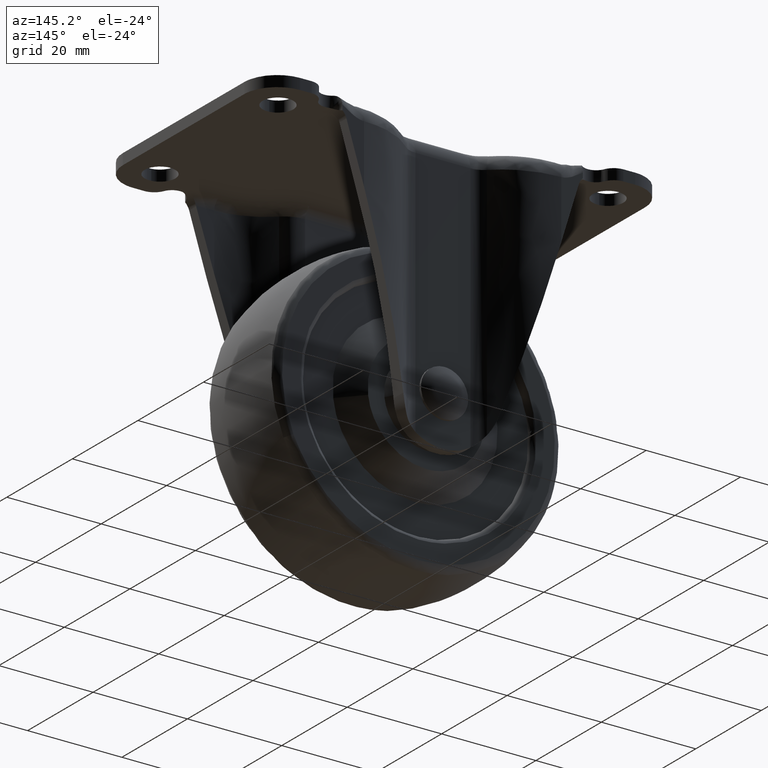
[diagram: clean part render]
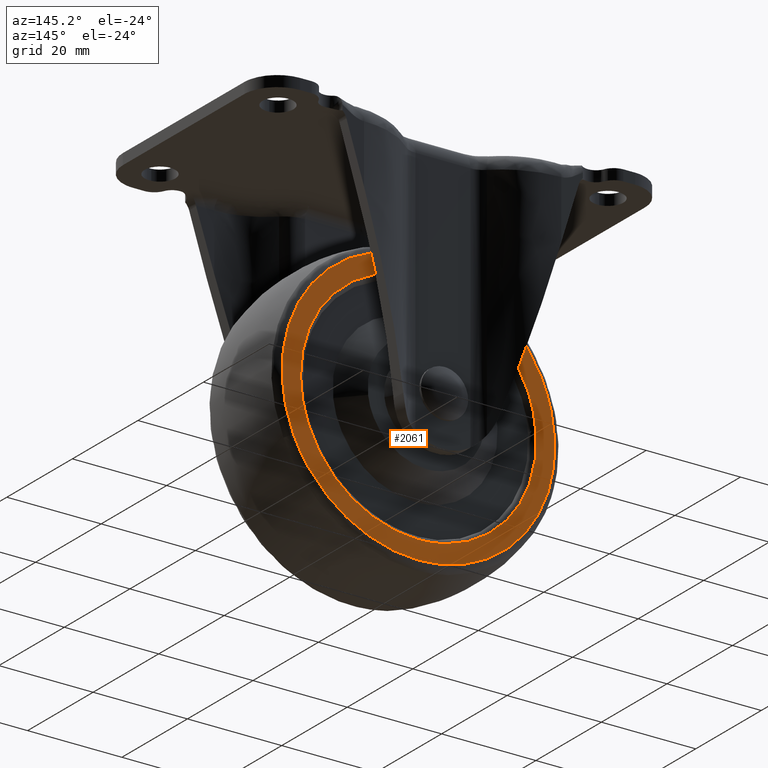
[diagram: same view with one face highlighted and labeled with its STEP entity id]
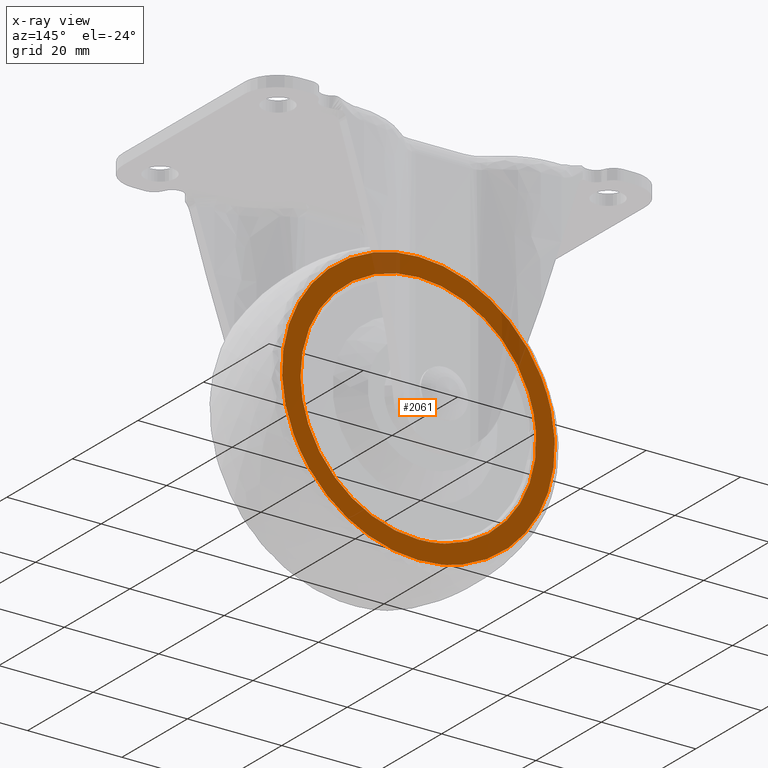
[diagram: x-ray of the same camera — body ghosted, the highlighted face saturated]
A machine part, auxiliary view. The second image highlights one B-rep face of the part: STEP entity #2061.
The next image is the same camera in x-ray: the body ghosted, the highlighted face saturated — about 7% of this face is hidden behind the body in this view.
In plain terms, the highlighted face is a freeform B-spline surface patch.
Its self-contained STEP definition (entity closure, byte-faithful):
#1453=CARTESIAN_POINT('',(26.486667035341458,10.500000000000000,-60.144346861437498));
#1454=VERTEX_POINT('',#1453);
#1468=CARTESIAN_POINT('',(0.0,10.500000000000000,-19.566726000000099));
#1469=VERTEX_POINT('',#1468);
#1470=CARTESIAN_POINT('',(26.486667035341465,10.500000000000000,-60.144346861437512));
#1471=CARTESIAN_POINT('',(28.933273999999898,10.500000000000000,-54.579203116927651));
#1472=CARTESIAN_POINT('',(28.933273999999901,10.500000000000000,-48.500000000000000));
#1473=CARTESIAN_POINT('',(28.933273999999905,10.500000000000002,-19.566726000000095));
#1474=CARTESIAN_POINT('',(0.0,10.500000000000000,-19.566726000000099));
#1482=(BOUNDED_CURVE()B_SPLINE_CURVE(2,(#1470,#1471,#1472,#1473,#1474),.UNSPECIFIED.,.F.,.U.)B_SPLINE_CURVE_WITH_KNOTS((3,2,3),(0.181662010434907,0.250000000000000,0.500000000000000),.UNSPECIFIED.)CURVE()GEOMETRIC_REPRESENTATION_ITEM()RATIONAL_B_SPLINE_CURVE((0.883644850243327,0.919937065076159,1.0,0.707106781186548,1.0))REPRESENTATION_ITEM(''));
#1483=EDGE_CURVE('',#1454,#1469,#1482,.T.);
#1485=CARTESIAN_POINT('',(-28.112487159007738,10.500000000000000,-41.657309717454510));
#1486=VERTEX_POINT('',#1485);
#1487=CARTESIAN_POINT('',(0.0,10.500000000000000,-19.566726000000099));
#1488=CARTESIAN_POINT('',(-22.735551927677601,10.500000000000000,-19.566726000000102));
#1489=CARTESIAN_POINT('',(-28.112487159007738,10.500000000000000,-41.657309717454517));
#1497=(BOUNDED_CURVE()B_SPLINE_CURVE(2,(#1487,#1488,#1489),.UNSPECIFIED.,.F.,.U.)B_SPLINE_CURVE_WITH_KNOTS((3,3),(0.500000000000000,0.709598322306346),.UNSPECIFIED.)CURVE()GEOMETRIC_REPRESENTATION_ITEM()RATIONAL_B_SPLINE_CURVE((1.0,0.754440290887180,0.920631806223011))REPRESENTATION_ITEM(''));
#1498=EDGE_CURVE('',#1469,#1486,#1497,.T.);
#1600=CARTESIAN_POINT('',(0.0,10.500000000000000,-77.433273999999898));
#1601=VERTEX_POINT('',#1600);
#1602=CARTESIAN_POINT('',(-28.112487159007731,10.500000000000000,-41.657309717454510));
#1603=CARTESIAN_POINT('',(-28.933273999999898,10.500000000000000,-45.029427799552693));
#1604=CARTESIAN_POINT('',(-28.933273999999901,10.500000000000000,-48.500000000000000));
#1605=CARTESIAN_POINT('',(-28.933273999999905,10.500000000000002,-77.433273999999898));
#1606=CARTESIAN_POINT('',(0.0,10.500000000000000,-77.433273999999898));
#1614=(BOUNDED_CURVE()B_SPLINE_CURVE(2,(#1602,#1603,#1604,#1605,#1606),.UNSPECIFIED.,.F.,.U.)B_SPLINE_CURVE_WITH_KNOTS((3,2,3),(0.709598322306346,0.750000000000000,1.0),.UNSPECIFIED.)CURVE()GEOMETRIC_REPRESENTATION_ITEM()RATIONAL_B_SPLINE_CURVE((0.920631806223011,0.952666490299368,1.0,0.707106781186548,1.0))REPRESENTATION_ITEM(''));
#1615=EDGE_CURVE('',#1486,#1601,#1614,.T.);
#1617=CARTESIAN_POINT('',(0.0,10.500000000000000,-77.433273999999898));
#1618=CARTESIAN_POINT('',(18.885927227229995,10.499999999999998,-77.433273999999898));
#1619=CARTESIAN_POINT('',(26.486667035341465,10.500000000000000,-60.144346861437512));
#1627=(BOUNDED_CURVE()B_SPLINE_CURVE(2,(#1617,#1618,#1619),.UNSPECIFIED.,.F.,.U.)B_SPLINE_CURVE_WITH_KNOTS((3,3),(0.0,0.181662010434907),.UNSPECIFIED.)CURVE()GEOMETRIC_REPRESENTATION_ITEM()RATIONAL_B_SPLINE_CURVE((1.0,0.787169716110389,0.883644850243327))REPRESENTATION_ITEM(''));
#1628=EDGE_CURVE('',#1601,#1454,#1627,.T.);
#1663=CARTESIAN_POINT('',(-24.939141844642759,10.500000000000000,-46.756668710618250));
#1664=VERTEX_POINT('',#1663);
#1665=CARTESIAN_POINT('',(0.0,10.500000000000000,-73.500000000000014));
#1666=VERTEX_POINT('',#1665);
#1667=CARTESIAN_POINT('',(-24.939141844642766,10.500000000000000,-46.756668710618250));
#1668=CARTESIAN_POINT('',(-25.000000000000004,10.500000000000002,-47.627272103041001));
#1669=CARTESIAN_POINT('',(-25.0,10.500000000000000,-48.500000000000000));
#1670=CARTESIAN_POINT('',(-25.000000000000004,10.500000000000000,-73.500000000000014));
#1671=CARTESIAN_POINT('',(0.0,10.500000000000000,-73.500000000000014));
#1679=(BOUNDED_CURVE()B_SPLINE_CURVE(2,(#1667,#1668,#1669,#1670,#1671),.UNSPECIFIED.,.F.,.U.)B_SPLINE_CURVE_WITH_KNOTS((3,2,3),(0.737833686533881,0.750000000000000,1.0),.UNSPECIFIED.)CURVE()GEOMETRIC_REPRESENTATION_ITEM()RATIONAL_B_SPLINE_CURVE((0.972879876384415,0.985746277151260,1.0,0.707106781186547,1.0))REPRESENTATION_ITEM(''));
#1680=EDGE_CURVE('',#1664,#1666,#1679,.T.);
#1729=CARTESIAN_POINT('',(24.998026104377040,10.500000000000000,-48.814150997144083));
#1730=VERTEX_POINT('',#1729);
#1744=CARTESIAN_POINT('',(0.0,10.500000000000000,-73.500000000000014));
#1745=CARTESIAN_POINT('',(24.687798247545992,10.500000000000000,-73.500000000000000));
#1746=CARTESIAN_POINT('',(24.998026104377047,10.500000000000002,-48.814150997144083));
#1754=(BOUNDED_CURVE()B_SPLINE_CURVE(2,(#1744,#1745,#1746),.UNSPECIFIED.,.F.,.U.)B_SPLINE_CURVE_WITH_KNOTS((3,3),(0.0,0.247784295920753),.UNSPECIFIED.)CURVE()GEOMETRIC_REPRESENTATION_ITEM()RATIONAL_B_SPLINE_CURVE((1.0,0.709702639985382,0.994854295641769))REPRESENTATION_ITEM(''));
#1755=EDGE_CURVE('',#1666,#1730,#1754,.T.);
#1783=CARTESIAN_POINT('',(0.0,10.500000000000000,-23.500000000000000));
#1784=VERTEX_POINT('',#1783);
#1785=CARTESIAN_POINT('',(0.0,10.500000000000000,-23.500000000000000));
#1786=CARTESIAN_POINT('',(-23.313421181495205,10.500000000000000,-23.500000000000004));
#1787=CARTESIAN_POINT('',(-24.939141844642755,10.499999999999998,-46.756668710618250));
#1795=(BOUNDED_CURVE()B_SPLINE_CURVE(2,(#1785,#1786,#1787),.UNSPECIFIED.,.F.,.U.)B_SPLINE_CURVE_WITH_KNOTS((3,3),(0.500000000000000,0.737833686533881),.UNSPECIFIED.)CURVE()GEOMETRIC_REPRESENTATION_ITEM()RATIONAL_B_SPLINE_CURVE((1.0,0.721360504035287,0.972879876384416))REPRESENTATION_ITEM(''));
#1796=EDGE_CURVE('',#1784,#1664,#1795,.T.);
#1798=CARTESIAN_POINT('',(24.998026104377043,10.499999999999998,-48.814150997144083));
#1799=CARTESIAN_POINT('',(25.0,10.500000000000002,-48.657081699866531));
#1800=CARTESIAN_POINT('',(25.0,10.500000000000000,-48.500000000000000));
#1801=CARTESIAN_POINT('',(25.000000000000004,10.500000000000000,-23.500000000000007));
#1802=CARTESIAN_POINT('',(0.0,10.500000000000000,-23.500000000000000));
#1810=(BOUNDED_CURVE()B_SPLINE_CURVE(2,(#1798,#1799,#1800,#1801,#1802),.UNSPECIFIED.,.F.,.U.)B_SPLINE_CURVE_WITH_KNOTS((3,2,3),(0.247784295920753,0.250000000000000,0.500000000000000),.UNSPECIFIED.)CURVE()GEOMETRIC_REPRESENTATION_ITEM()RATIONAL_B_SPLINE_CURVE((0.994854295641769,0.997404141201166,1.0,0.707106781186547,1.0))REPRESENTATION_ITEM(''));
#1811=EDGE_CURVE('',#1730,#1784,#1810,.T.);
#2044=CARTESIAN_POINT('',(-31.823399584502209,10.500000000000000,-16.676292582766450));
#2045=CARTESIAN_POINT('',(-31.823399584502209,10.500000000000000,-80.323709486702569));
#2046=CARTESIAN_POINT('',(31.819209091238140,10.500000000000000,-16.676292582766450));
#2047=CARTESIAN_POINT('',(31.819209091238140,10.500000000000000,-80.323709486702555));
#2048=B_SPLINE_SURFACE_WITH_KNOTS('',1,1,((#2044,#2046),(#2045,#2047)),.UNSPECIFIED.,.F.,.F.,.U.,(2,2),(2,2),(0.0,63.647416903936112),(0.0,63.642608675740341),.UNSPECIFIED.);
#2049=ORIENTED_EDGE('',*,*,#1615,.F.);
#2050=ORIENTED_EDGE('',*,*,#1498,.F.);
#2051=ORIENTED_EDGE('',*,*,#1483,.F.);
#2052=ORIENTED_EDGE('',*,*,#1628,.F.);
#2053=EDGE_LOOP('',(#2049,#2050,#2051,#2052));
#2054=FACE_OUTER_BOUND('',#2053,.T.);
#2055=ORIENTED_EDGE('',*,*,#1755,.T.);
#2056=ORIENTED_EDGE('',*,*,#1811,.T.);
#2057=ORIENTED_EDGE('',*,*,#1796,.T.);
#2058=ORIENTED_EDGE('',*,*,#1680,.T.);
#2059=EDGE_LOOP('',(#2055,#2056,#2057,#2058));
#2060=FACE_BOUND('',#2059,.T.);
#2061=ADVANCED_FACE('',(#2054,#2060),#2048,.F.);